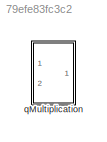
MODEL slx_79efe83fc3c2
KIND model
CONFIG AbsTol = auto
CONFIG EnableMultiTasking = off
CONFIG FixedStep = auto
CONFIG MaxStep = auto
CONFIG MinStep = auto
CONFIG RelTol = 1e-3
CONFIG SampleTimeConstraint = Unconstrained
CONFIG Solver = VariableStepAuto
CONFIG SolverName = VariableStepAuto
CONFIG StartTime = 0.0
CONFIG StopTime = 10.0
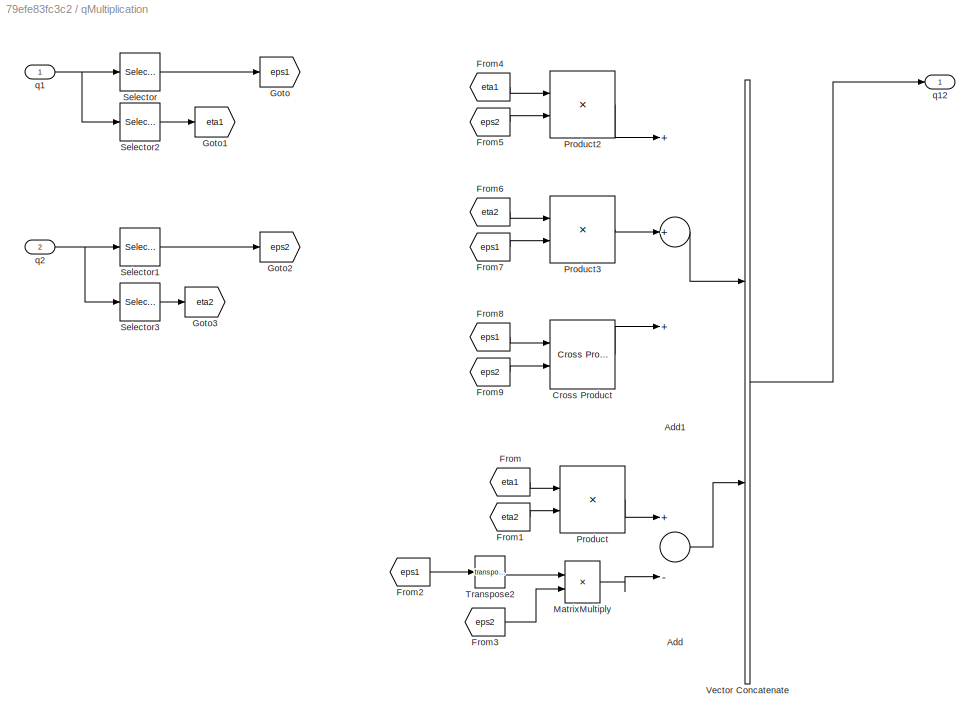
BLOCK [SubSystem] qMultiplication
  Ports = [2, 1]
  RequestExecContextInheritance = off
BLOCK [Sum] qMultiplication/Add
  InputSameDT = off
  Inputs = +-
  OutDataTypeStr = Inherit: Inherit via internal rule
  Ports = [2, 1]
  SaturateOnIntegerOverflow = off
BLOCK [Sum] qMultiplication/Add1
  InputSameDT = off
  Inputs = +++
  OutDataTypeStr = Inherit: Inherit via internal rule
  Ports = [3, 1]
  SaturateOnIntegerOverflow = off
BLOCK [Reference] qMultiplication/Cross Product  REF=vrlib/Utilities/Cross Product
  Ports = [2, 1]
  SourceBlock = vrlib/Utilities/Cross Product
  SourceProductBaseCode = VR
  SourceProductName = Simulink 3D Animation
  SourceType = Cross Product
BLOCK [From] qMultiplication/From
  GotoTag = eta1
BLOCK [From] qMultiplication/From1
  GotoTag = eta2
BLOCK [From] qMultiplication/From2
  GotoTag = eps1
BLOCK [From] qMultiplication/From3
  GotoTag = eps2
BLOCK [From] qMultiplication/From4
  GotoTag = eta1
BLOCK [From] qMultiplication/From5
  GotoTag = eps2
BLOCK [From] qMultiplication/From6
  GotoTag = eta2
BLOCK [From] qMultiplication/From7
  GotoTag = eps1
BLOCK [From] qMultiplication/From8
  GotoTag = eps1
BLOCK [From] qMultiplication/From9
  GotoTag = eps2
BLOCK [Goto] qMultiplication/Goto
  GotoTag = eps1
BLOCK [Goto] qMultiplication/Goto1
  GotoTag = eta1
BLOCK [Goto] qMultiplication/Goto2
  GotoTag = eps2
BLOCK [Goto] qMultiplication/Goto3
  GotoTag = eta2
BLOCK [Product] qMultiplication/MatrixMultiply
  InputSameDT = off
  Multiplication = Matrix(*)
  OutDataTypeStr = Inherit: Inherit via internal rule
  Ports = [2, 1]
  RndMeth = Floor
  SaturateOnIntegerOverflow = off
BLOCK [Product] qMultiplication/Product
  InputSameDT = off
  OutDataTypeStr = Inherit: Inherit via internal rule
  Ports = [2, 1]
  RndMeth = Floor
  SaturateOnIntegerOverflow = off
BLOCK [Product] qMultiplication/Product2
  InputSameDT = off
  OutDataTypeStr = Inherit: Inherit via internal rule
  Ports = [2, 1]
  RndMeth = Floor
  SaturateOnIntegerOverflow = off
BLOCK [Product] qMultiplication/Product3
  InputSameDT = off
  OutDataTypeStr = Inherit: Inherit via internal rule
  Ports = [2, 1]
  RndMeth = Floor
  SaturateOnIntegerOverflow = off
BLOCK [Selector] qMultiplication/Selector
  IndexOptions = Index vector (dialog)
  Indices = [1:3]
  InputPortWidth = 4
  OutputSizes = 1
  Ports = [1, 1]
BLOCK [Selector] qMultiplication/Selector1
  IndexOptions = Index vector (dialog)
  Indices = [1:3]
  InputPortWidth = 4
  OutputSizes = 1
  Ports = [1, 1]
BLOCK [Selector] qMultiplication/Selector2
  IndexOptions = Index vector (dialog)
  Indices = 4
  InputPortWidth = 4
  OutputSizes = 1
  Ports = [1, 1]
BLOCK [Selector] qMultiplication/Selector3
  IndexOptions = Index vector (dialog)
  Indices = 4
  InputPortWidth = 4
  OutputSizes = 1
  Ports = [1, 1]
BLOCK [Math] qMultiplication/Transpose2
  Operator = transpose
  Ports = [1, 1]
BLOCK [Concatenate] qMultiplication/Vector Concatenate
  Ports = [2, 1]
BLOCK [Inport] qMultiplication/q1
  IconDisplay = Port number
BLOCK [Outport] qMultiplication/q12
  IconDisplay = Port number
BLOCK [Inport] qMultiplication/q2
  IconDisplay = Port number
  Port = 2
LINE qMultiplication/Add1:1 -> qMultiplication/Vector Concatenate:1
LINE qMultiplication/Add:1 -> qMultiplication/Vector Concatenate:2
LINE qMultiplication/Cross Product:1 -> qMultiplication/Add1:3
LINE qMultiplication/From1:1 -> qMultiplication/Product:2
LINE qMultiplication/From2:1 -> qMultiplication/Transpose2:1
LINE qMultiplication/From3:1 -> qMultiplication/MatrixMultiply:2
LINE qMultiplication/From4:1 -> qMultiplication/Product2:1
LINE qMultiplication/From5:1 -> qMultiplication/Product2:2
LINE qMultiplication/From6:1 -> qMultiplication/Product3:1
LINE qMultiplication/From7:1 -> qMultiplication/Product3:2
LINE qMultiplication/From8:1 -> qMultiplication/Cross Product:1
LINE qMultiplication/From9:1 -> qMultiplication/Cross Product:2
LINE qMultiplication/From:1 -> qMultiplication/Product:1
LINE qMultiplication/MatrixMultiply:1 -> qMultiplication/Add:2
LINE qMultiplication/Product2:1 -> qMultiplication/Add1:1
LINE qMultiplication/Product3:1 -> qMultiplication/Add1:2
LINE qMultiplication/Product:1 -> qMultiplication/Add:1
LINE qMultiplication/Selector1:1 -> qMultiplication/Goto2:1
LINE qMultiplication/Selector2:1 -> qMultiplication/Goto1:1
LINE qMultiplication/Selector3:1 -> qMultiplication/Goto3:1
LINE qMultiplication/Selector:1 -> qMultiplication/Goto:1
LINE qMultiplication/Transpose2:1 -> qMultiplication/MatrixMultiply:1
LINE qMultiplication/Vector Concatenate:1 -> qMultiplication/q12:1
NET qMultiplication/q1:1 -> qMultiplication/Selector2:1, qMultiplication/Selector:1
NET qMultiplication/q2:1 -> qMultiplication/Selector1:1, qMultiplication/Selector3:1
note: NET lines group one-source signal fan-out (src -> all destinations, sorted); 1:1 wires keep LINE
